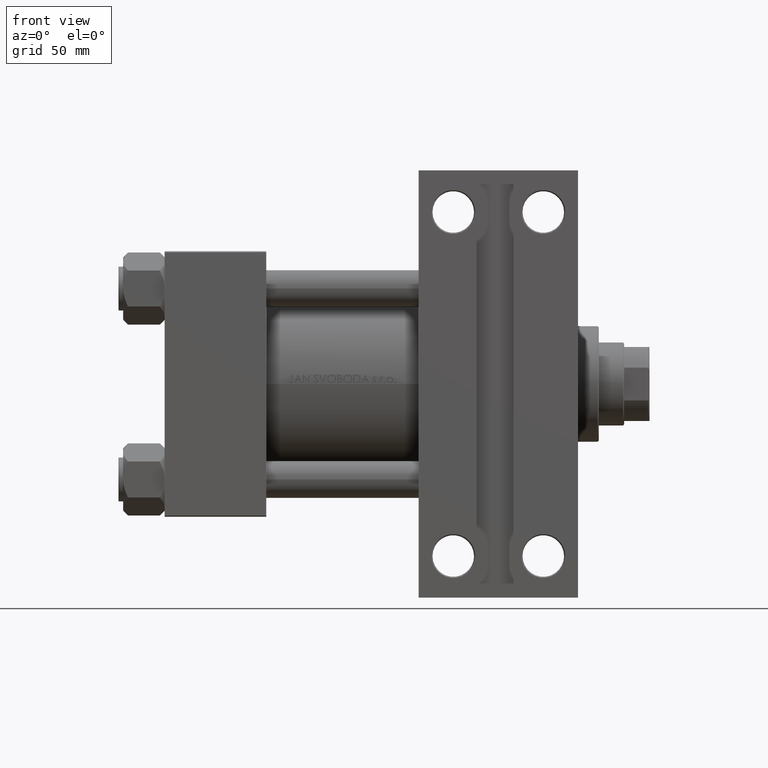
[diagram: clean part render]
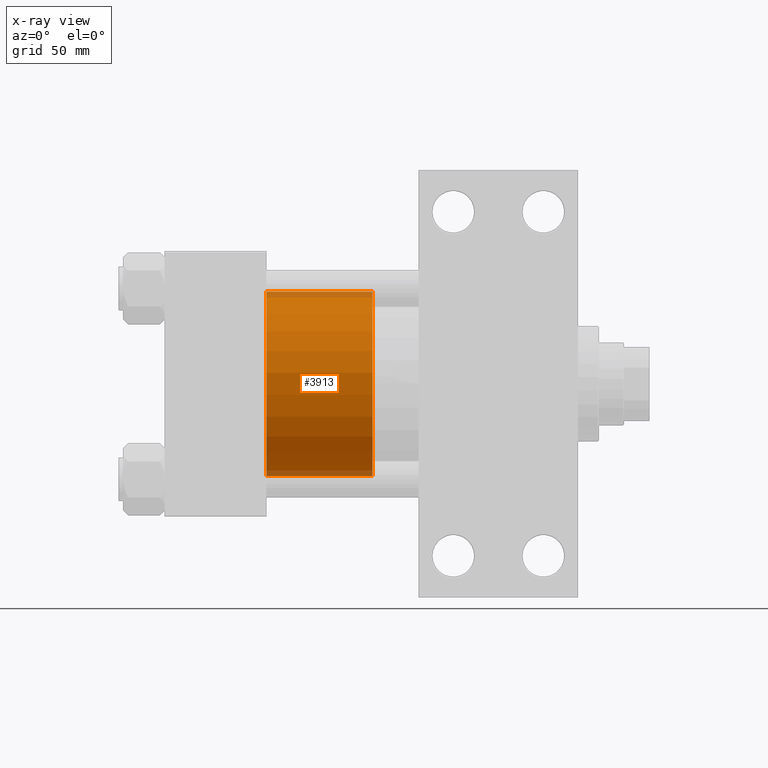
[diagram: x-ray — body ghosted, one internal face saturated and labeled with its STEP entity id]
A machine part, front view, then the same camera in x-ray: the body is ghosted and one INTERNAL B-rep face — a face not visible from any outside direction — is saturated and labeled: STEP entity #3913.
In plain terms, the highlighted cylindrical surface (partial cylindrical patch) has radius 40 mm, axis along (-1, 0, 0).
Its self-contained STEP definition (entity closure, byte-faithful):
#155 = ORIENTED_EDGE ( 'NONE', *, *, #16769, .F. ) ;
#952 = LINE ( 'NONE', #27922, #34055 ) ;
#1059 = AXIS2_PLACEMENT_3D ( 'NONE', #34832, #46036, #38484 ) ;
#2739 = AXIS2_PLACEMENT_3D ( 'NONE', #18693, #33533, #30107 ) ;
#3554 = FACE_OUTER_BOUND ( 'NONE', #40805, .T. ) ;
#3913 = ADVANCED_FACE ( 'NONE', ( #3554 ), #48086, .T. ) ;
#4376 = EDGE_CURVE ( 'NONE', #24917, #34742, #24359, .T. ) ;
#5323 = CARTESIAN_POINT ( 'NONE',  ( -40.00000000000000000, 0.000000000000000000, 46.00000000000000000 ) ) ;
#5677 = DIRECTION ( 'NONE',  ( -0.000000000000000000, -0.000000000000000000, -1.000000000000000000 ) ) ;
#6360 = VERTEX_POINT ( 'NONE', #19334 ) ;
#8187 = CIRCLE ( 'NONE', #2739, 40.00000000000000000 ) ;
#10218 = EDGE_CURVE ( 'NONE', #24917, #17800, #952, .T. ) ;
#10387 = DIRECTION ( 'NONE',  ( -1.000000000000000000, 0.000000000000000000, 0.000000000000000000 ) ) ;
#14267 = CARTESIAN_POINT ( 'NONE',  ( 40.00000000000000000, 4.898587196589413026E-15, 0.000000000000000000 ) ) ;
#14755 = CARTESIAN_POINT ( 'NONE',  ( 0.000000000000000000, 0.000000000000000000, 46.00000000000000000 ) ) ;
#16769 = EDGE_CURVE ( 'NONE', #34742, #6360, #39977, .T. ) ;
#17800 = VERTEX_POINT ( 'NONE', #14267 ) ;
#18693 = CARTESIAN_POINT ( 'NONE',  ( 0.000000000000000000, 0.000000000000000000, 0.000000000000000000 ) ) ;
#19334 = CARTESIAN_POINT ( 'NONE',  ( -40.00000000000000000, 0.000000000000000000, 0.000000000000000000 ) ) ;
#19597 = ORIENTED_EDGE ( 'NONE', *, *, #10218, .T. ) ;
#23599 = AXIS2_PLACEMENT_3D ( 'NONE', #14755, #37101, #10387 ) ;
#23757 = EDGE_CURVE ( 'NONE', #17800, #6360, #8187, .T. ) ;
#24042 = DIRECTION ( 'NONE',  ( -0.000000000000000000, -0.000000000000000000, -1.000000000000000000 ) ) ;
#24359 = CIRCLE ( 'NONE', #1059, 40.00000000000000000 ) ;
#24917 = VERTEX_POINT ( 'NONE', #36642 ) ;
#27922 = CARTESIAN_POINT ( 'NONE',  ( 40.00000000000000000, 4.898587196589413026E-15, 46.00000000000000000 ) ) ;
#30107 = DIRECTION ( 'NONE',  ( 1.000000000000000000, 0.000000000000000000, 0.000000000000000000 ) ) ;
#30534 = ORIENTED_EDGE ( 'NONE', *, *, #23757, .T. ) ;
#33533 = DIRECTION ( 'NONE',  ( 0.000000000000000000, 0.000000000000000000, 1.000000000000000000 ) ) ;
#33887 = ORIENTED_EDGE ( 'NONE', *, *, #4376, .F. ) ;
#34055 = VECTOR ( 'NONE', #24042, 1000.000000000000000 ) ;
#34742 = VERTEX_POINT ( 'NONE', #5323 ) ;
#34832 = CARTESIAN_POINT ( 'NONE',  ( 0.000000000000000000, 0.000000000000000000, 46.00000000000000000 ) ) ;
#36642 = CARTESIAN_POINT ( 'NONE',  ( 40.00000000000000000, 4.898587196589413026E-15, 46.00000000000000000 ) ) ;
#37101 = DIRECTION ( 'NONE',  ( -0.000000000000000000, -0.000000000000000000, -1.000000000000000000 ) ) ;
#38484 = DIRECTION ( 'NONE',  ( 1.000000000000000000, 0.000000000000000000, 0.000000000000000000 ) ) ;
#39734 = CARTESIAN_POINT ( 'NONE',  ( -40.00000000000000000, 0.000000000000000000, 46.00000000000000000 ) ) ;
#39977 = LINE ( 'NONE', #39734, #43610 ) ;
#40805 = EDGE_LOOP ( 'NONE', ( #33887, #19597, #30534, #155 ) ) ;
#43610 = VECTOR ( 'NONE', #5677, 1000.000000000000000 ) ;
#46036 = DIRECTION ( 'NONE',  ( 0.000000000000000000, 0.000000000000000000, 1.000000000000000000 ) ) ;
#48086 = CYLINDRICAL_SURFACE ( 'NONE', #23599, 40.00000000000000000 ) ;